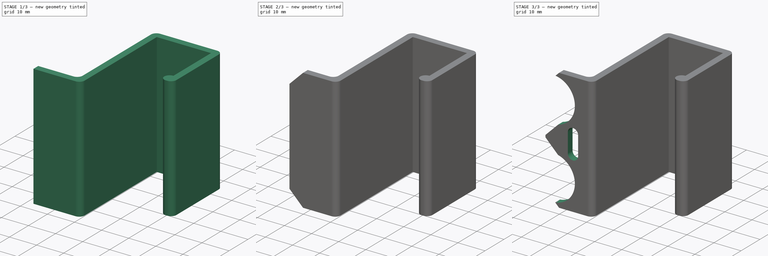
[diagram: build sequence overview — one tinted view per stage of 3, left to right]
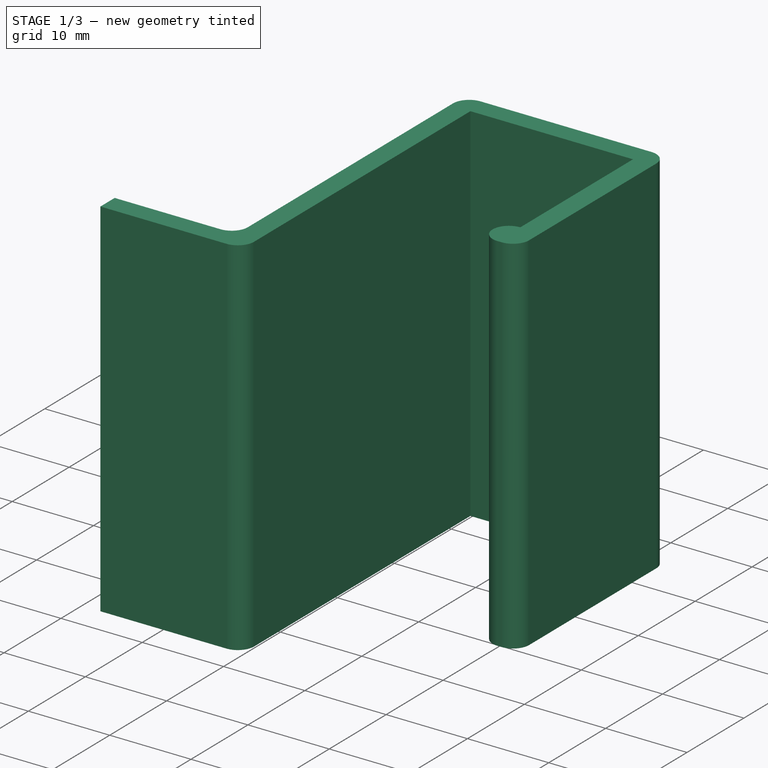
[diagram: stage 1 of 3 — iso view after this stage's code; geometry added in this stage tinted green]
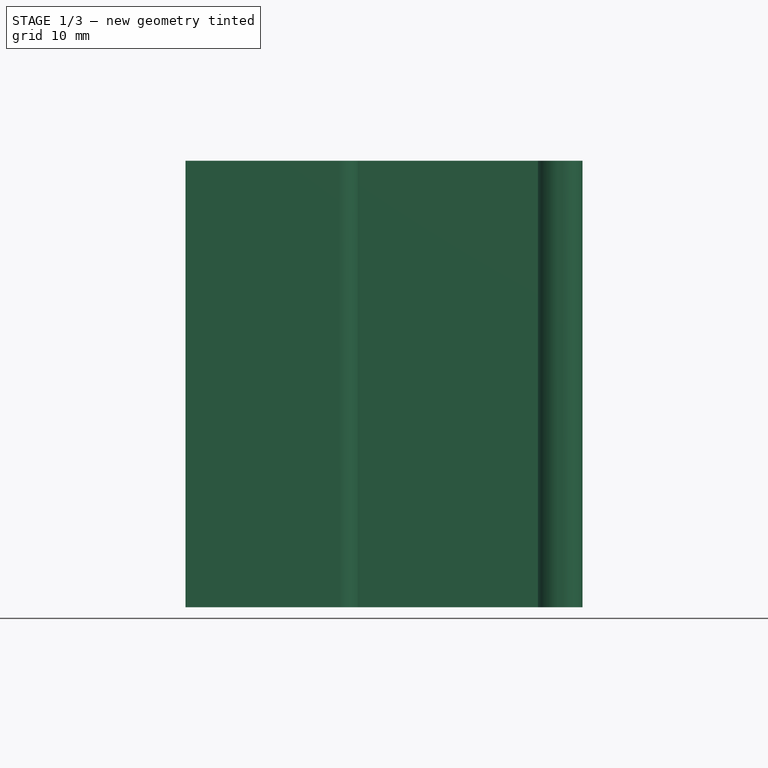
[diagram: stage 1 of 3 — front view after this stage's code; geometry added in this stage tinted green]
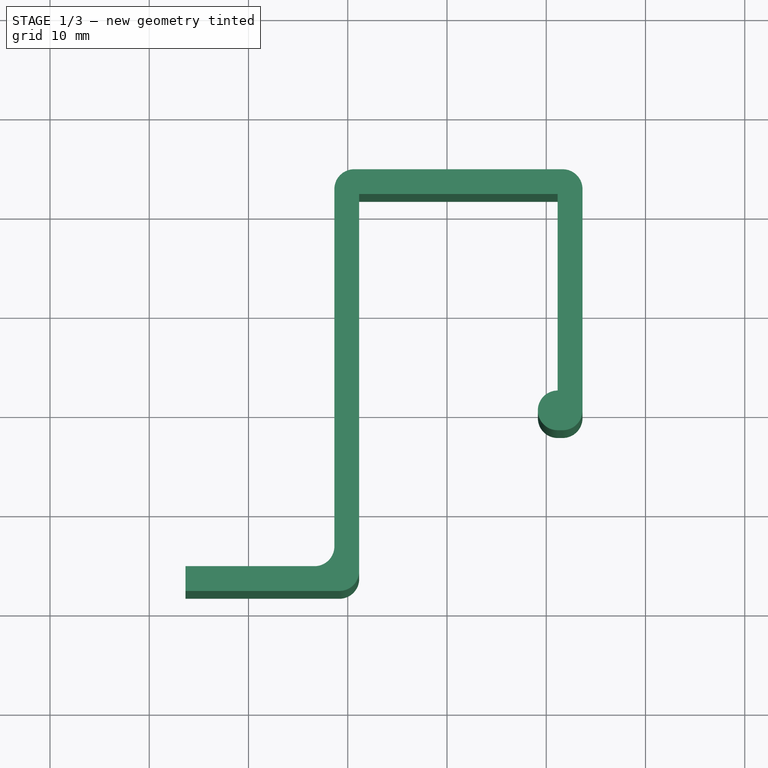
[diagram: stage 1 of 3 — top view after this stage's code; geometry added in this stage tinted green]
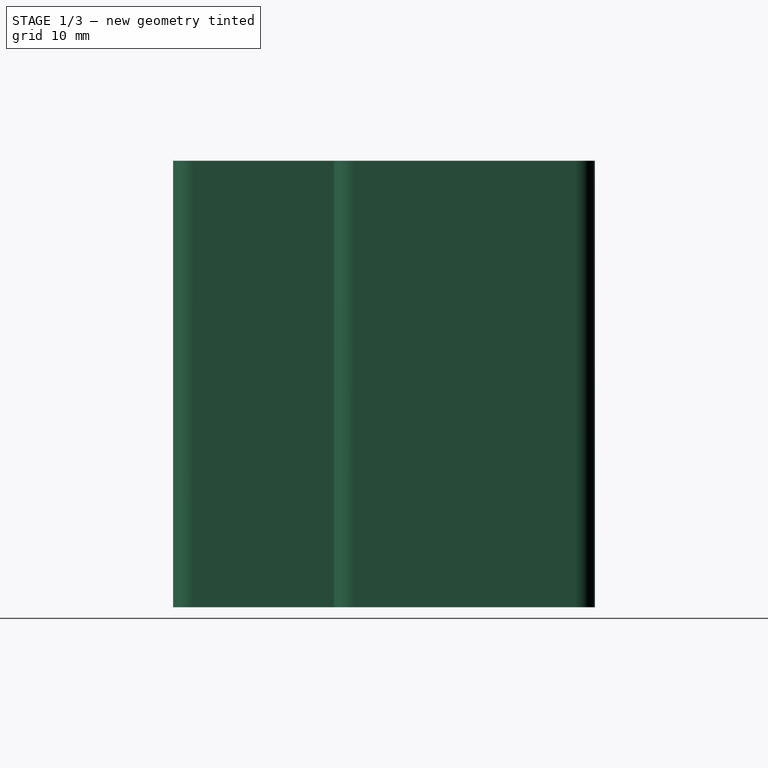
[diagram: stage 1 of 3 — right view after this stage's code; geometry added in this stage tinted green]
FCSTD DOCUMENT  (FreeCAD 0.18R4 (GitTag))
Label: Soporte_distancia
License: All rights reserved
LicenseURL: http://en.wikipedia.org/wiki/All_rights_reserved
objects: Sketcher::SketchObject×3, PartDesign::Pocket×2, PartDesign::Pad×1, PartDesign::Fillet×1, PartDesign::Chamfer×1, PartDesign::Body×1
note: 12 computed .brp shape members not serialized (recipe doc carries the construction recipe); baked Part::Feature solids carry a one-line shape summary decoded from their .brp

FEATURE [Sketcher::SketchObject] Sketch
  MapMode = 5
  Support = -> [XY_Plane]
  sketch-geometry (15):
    g0: LineSegment StartX=11.1549 StartY=7.91936 StartZ=0 EndX=13.6549 EndY=7.91936 EndZ=0
    g1: LineSegment StartX=13.6549 StartY=7.91936 StartZ=0 EndX=13.6549 EndY=34.2194 EndZ=0
    g2: LineSegment StartX=13.6549 StartY=34.2194 StartZ=0 EndX=-11.3451 EndY=34.2194 EndZ=0
    g3: LineSegment StartX=-11.3451 StartY=34.2194 StartZ=0 EndX=-11.3451 EndY=-5.78064 EndZ=0
    g4: LineSegment StartX=-11.3451 StartY=-5.78064 StartZ=0 EndX=-26.3451 EndY=-5.78064 EndZ=0
    g5: LineSegment StartX=-26.3451 StartY=-5.78064 StartZ=0 EndX=-26.3451 EndY=-8.28064 EndZ=0
    g6: LineSegment StartX=-26.3451 StartY=-8.28064 StartZ=0 EndX=-8.84505 EndY=-8.28064 EndZ=0
    g7: LineSegment StartX=-8.84505 StartY=-8.28064 StartZ=0 EndX=-8.84505 EndY=31.7194 EndZ=0
    g8: LineSegment StartX=-8.84505 StartY=31.7194 StartZ=0 EndX=11.1549 EndY=31.7194 EndZ=0
    g9: LineSegment StartX=11.1549 StartY=31.7194 StartZ=0 EndX=11.1549 EndY=11.9194 EndZ=0
    g10: ArcOfCircle CenterX=11.1549 CenterY=9.91936 CenterZ=0 NormalX=0 NormalY=0 NormalZ=1 AngleXU=0 Radius=2 StartAngle=1.5708 EndAngle=4.71239
    g11: LineSegment [constr] StartX=-11.3451 StartY=34.2194 StartZ=0 EndX=-8.84505 EndY=34.2194 EndZ=0
    g12: LineSegment [constr] StartX=-8.84505 StartY=34.2194 StartZ=0 EndX=-8.84505 EndY=31.7194 EndZ=0
    g13: LineSegment [constr] StartX=-8.84505 StartY=31.7194 StartZ=0 EndX=-11.3451 EndY=31.7194 EndZ=0
    g14: LineSegment [constr] StartX=-11.3451 StartY=31.7194 StartZ=0 EndX=-11.3451 EndY=34.2194 EndZ=0
  constraints (41):
    c: Coincident(g0,g1)
    c: Coincident(g1,g2)
    c: Coincident(g2,g3)
    c: Coincident(g3,g4)
    c: Coincident(g4,g5)
    c: Coincident(g5,g6)
    c: Coincident(g6,g7)
    c: Coincident(g7,g8)
    c: Coincident(g8,g9)
    c: Coincident(g9,g10)
    c: Tangent(g0,g10) = -1.5708
    c: Perpendicular(g10,g9)
    c: Vertical(g9)
    c: Vertical(g1)
    c: Vertical(g7)
    c: Vertical(g3)
    c: Vertical(g5)
    c: Horizontal(g6)
    c: Horizontal(g4)
    c: Horizontal(g2)
    c: Horizontal(g8)
    c: Horizontal(g0)
    c: Distance(g5) = 2.5
    c: Distance(g8) = 20
    c: Distance(g7) = 40
    c: Distance(g9) = 19.8
    c: Equal(g0,g5)
    c: Coincident(g11,g12)
    c: Coincident(g12,g13)
    c: Coincident(g13,g14)
    c: Coincident(g14,g11)
    c: Horizontal(g11)
    c: Horizontal(g13)
    c: Vertical(g12)
    c: Vertical(g14)
    c: Coincident(g7,g12)
    c: Coincident(g2,g11)
    c: Equal(g13,g5)
    c: Equal(g5,g12)
    c: Radius(g10) = 2
    c: Distance(g4) = 15
FEATURE [PartDesign::Pad] Pad
  Length = 45
  Length2 = 100
  Profile = -> Sketch
  Type = 0
FEATURE [PartDesign::Fillet] Fillet
  Base = -> Pad [Edge20,Edge11,Edge8,Edge5,Edge2]
  BaseFeature = -> Pad
  Radius = 2
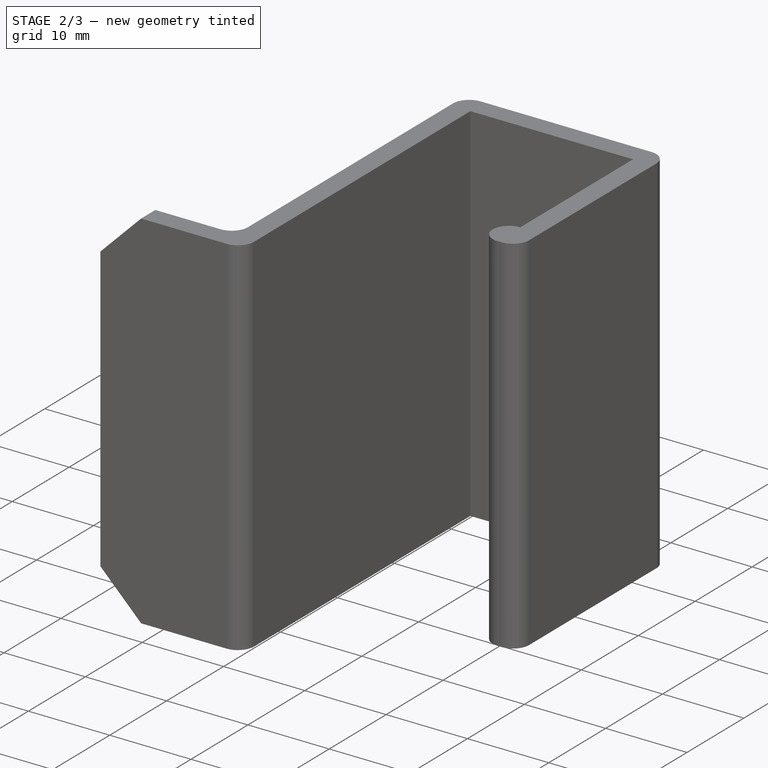
[diagram: stage 2 of 3 — iso view after this stage's code; geometry added in this stage tinted green]
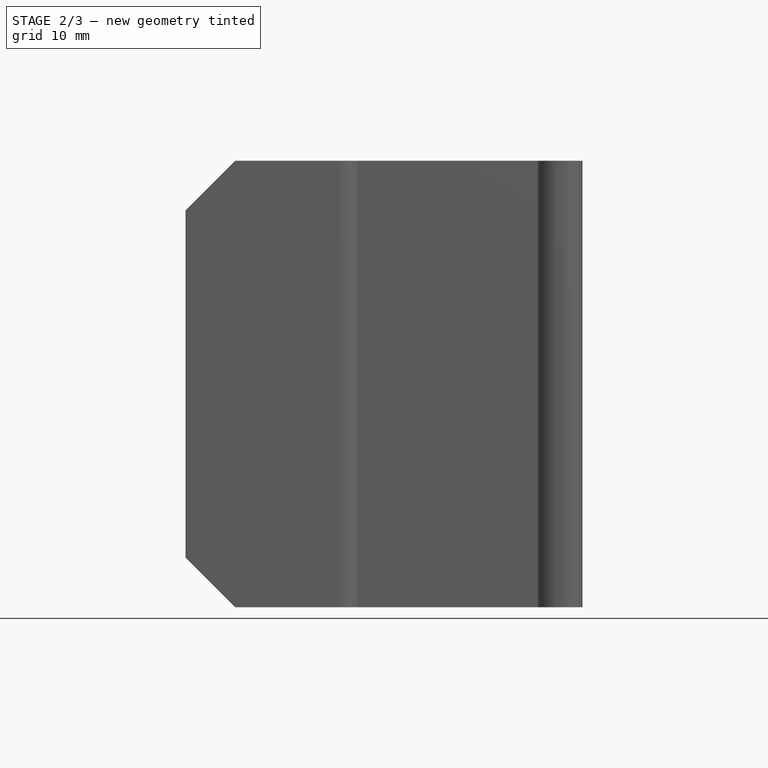
[diagram: stage 2 of 3 — front view after this stage's code; geometry added in this stage tinted green]
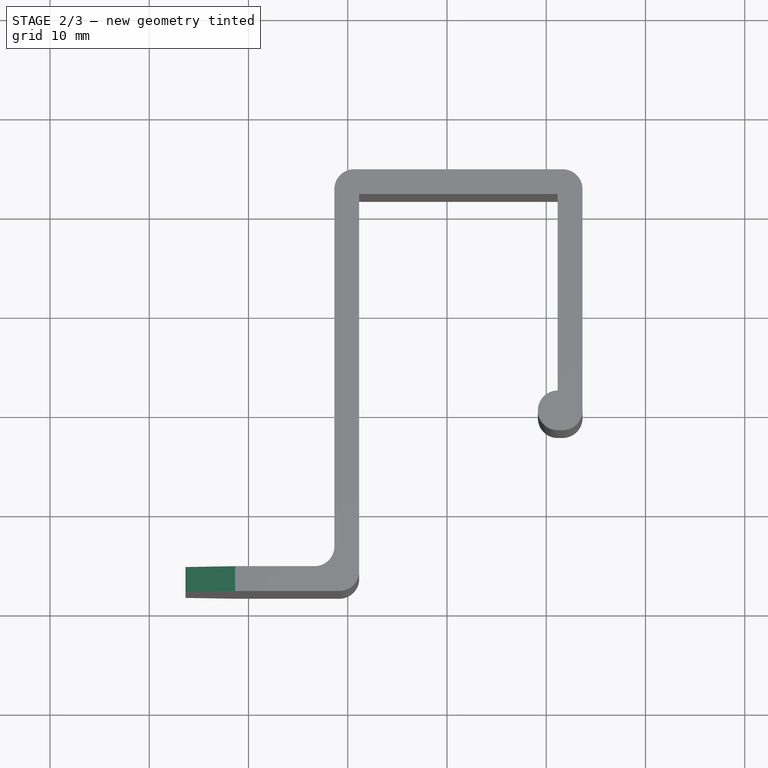
[diagram: stage 2 of 3 — top view after this stage's code; geometry added in this stage tinted green]
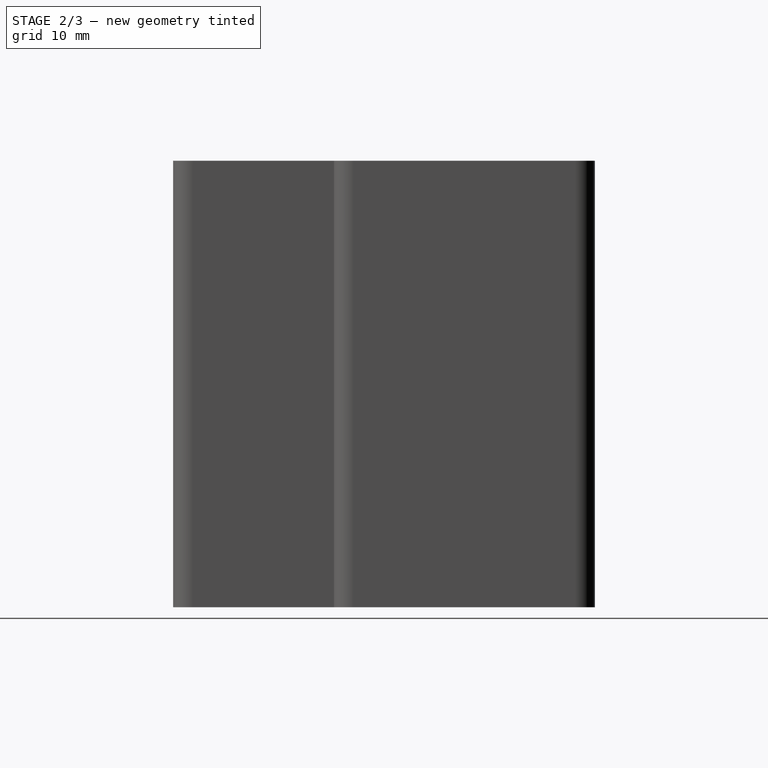
[diagram: stage 2 of 3 — right view after this stage's code; geometry added in this stage tinted green]
FEATURE [PartDesign::Chamfer] Chamfer
  Base = -> Fillet [Edge18,Edge35]
  BaseFeature = -> Fillet
  Size = 5
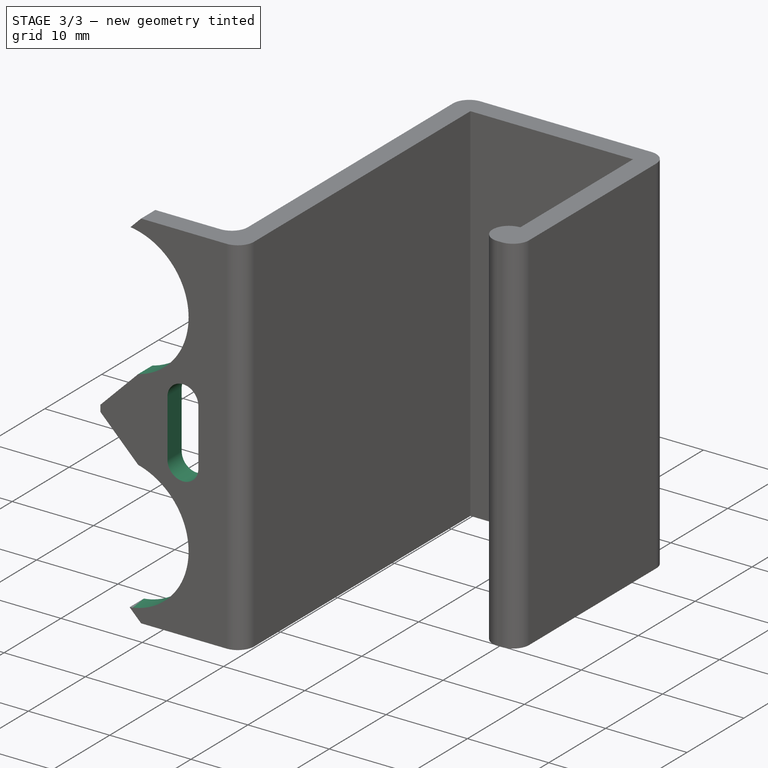
[diagram: stage 3 of 3 — iso view after this stage's code; geometry added in this stage tinted green]
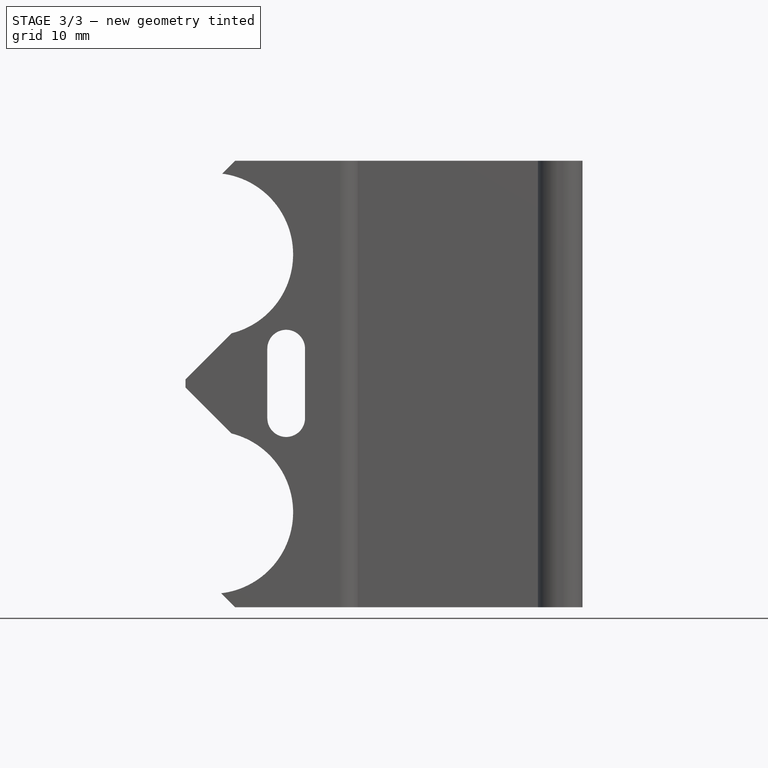
[diagram: stage 3 of 3 — front view after this stage's code; geometry added in this stage tinted green]
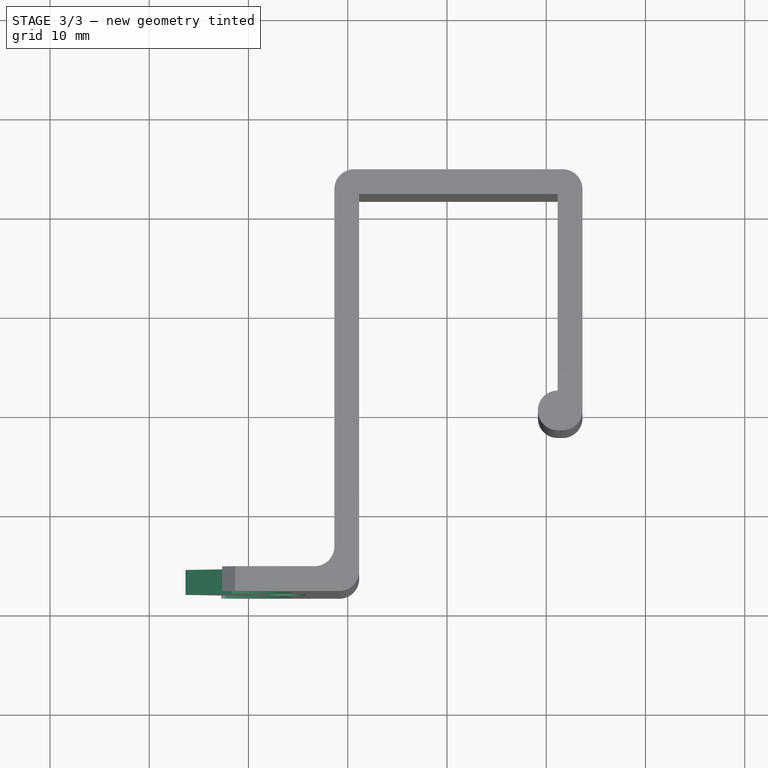
[diagram: stage 3 of 3 — top view after this stage's code; geometry added in this stage tinted green]
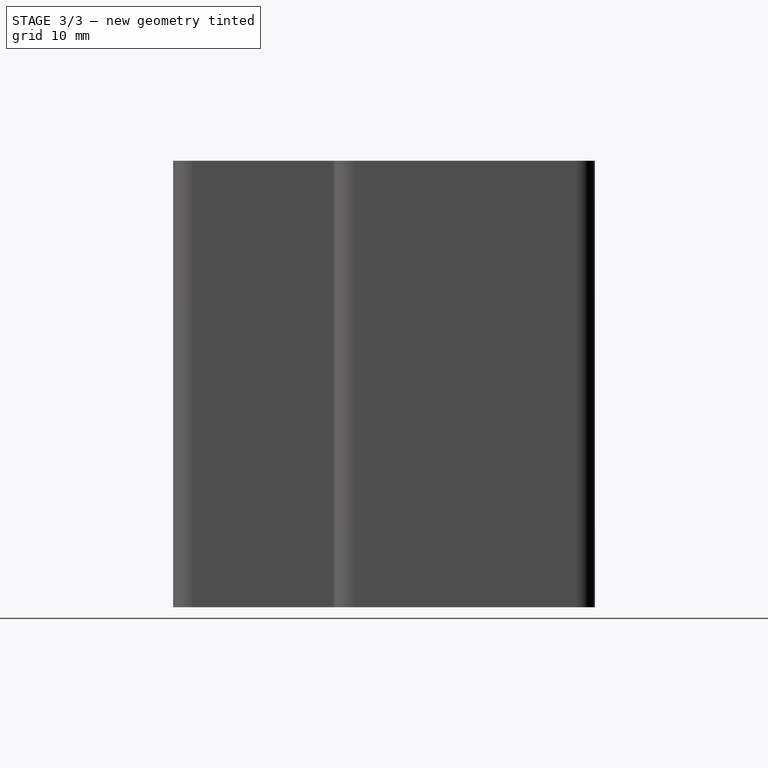
[diagram: stage 3 of 3 — right view after this stage's code; geometry added in this stage tinted green]
FEATURE [Sketcher::SketchObject] Sketch001
  ExternalGeometry = -> [Chamfer]
  MapMode = 5
  Placement = pos=(0,-8.28064,0) rot=(1,0,0;1.5708rad)
  Support = -> [Chamfer]
  sketch-geometry (3):
    g0: Circle CenterX=-20.3451 CenterY=4.25 CenterZ=0 NormalX=0 NormalY=0 NormalZ=1 AngleXU=0 Radius=1.8
    g1: Circle CenterX=-20.3451 CenterY=40.75 CenterZ=0 NormalX=0 NormalY=0 NormalZ=1 AngleXU=0 Radius=1.8
    g2: LineSegment [constr] StartX=-25.4261 StartY=22.5 StartZ=0 EndX=-20.3451 EndY=22.5 EndZ=0
  constraints (7):
    c: Equal(g1,g0)
    c: Distance(g1,g0) = 36.5
    c: Radius(g1) = 1.8
    c: Symmetric(g0,g1,g2)
    c: Symmetric(g-3,g-3,g2)
    c: Vertical(g2,g0)
    c: DistanceX(g-3,g0) = 6
FEATURE [PartDesign::Pocket] Pocket
  BaseFeature = -> Chamfer
  Length = 5
  Length2 = 100
  Profile = -> Sketch001
  Type = 0
FEATURE [Sketcher::SketchObject] Sketch002
  MapMode = 5
  Placement = pos=(0,-8.28064,0) rot=(1,0,0;1.5708rad)
  Support = -> [Pocket]
  sketch-geometry (12):
    g0: ArcOfCircle CenterX=-23.7029 CenterY=9.56228 CenterZ=0 NormalX=0 NormalY=0 NormalZ=1 AngleXU=0 Radius=8.2 StartAngle=4.71239 EndAngle=7.60759
    g1: ArcOfCircle CenterX=-23.7029 CenterY=35.5623 CenterZ=0 NormalX=0 NormalY=0 NormalZ=1 AngleXU=0 Radius=8.2 StartAngle=4.95878 EndAngle=7.85398
    g2: LineSegment StartX=-21.7029 StartY=17.5146 StartZ=0 EndX=-26.7505 EndY=22.5623 EndZ=0
    g3: LineSegment StartX=-26.7505 StartY=22.5623 StartZ=0 EndX=-21.7029 EndY=27.6099 EndZ=0
    g4: LineSegment StartX=-23.7029 StartY=43.7623 StartZ=0 EndX=-32.4194 EndY=43.7623 EndZ=0
    g5: LineSegment StartX=-32.4194 StartY=43.7623 StartZ=0 EndX=-32.4194 EndY=1.36228 EndZ=0
    g6: LineSegment StartX=-32.4194 StartY=1.36228 StartZ=0 EndX=-23.7029 EndY=1.36228 EndZ=0
    g7: ArcOfCircle CenterX=-16.2029 CenterY=26.0623 CenterZ=0 NormalX=0 NormalY=0 NormalZ=1 AngleXU=0 Radius=1.9 StartAngle=9e-16 EndAngle=3.14159
    g8: ArcOfCircle CenterX=-16.2029 CenterY=19.0623 CenterZ=0 NormalX=0 NormalY=0 NormalZ=1 AngleXU=0 Radius=1.9 StartAngle=3.14159 EndAngle=6.28319
    g9: LineSegment StartX=-18.1029 StartY=26.0623 StartZ=0 EndX=-18.1029 EndY=19.0623 EndZ=0
    g10: LineSegment StartX=-14.3029 StartY=26.0623 StartZ=0 EndX=-14.3029 EndY=19.0623 EndZ=0
    g11: LineSegment [constr] StartX=-26.7505 StartY=22.5623 StartZ=0 EndX=-18.1029 EndY=22.5623 EndZ=0
  constraints (30):
    c: Radius(g1) = 8.2
    c: Distance(g1,g0) = 26
    c: Vertical(g0,g1)
    c: Coincident(g2,g3)
    c: Coincident(g4,g5)
    c: Coincident(g5,g6)
    c: Coincident(g0,g2)
    c: Coincident(g1,g3)
    c: Vertical(g5)
    c: Horizontal(g6)
    c: Horizontal(g4)
    c: Angle(g-1,g2) = 2.35619
    c: Perpendicular(g3,g2)
    c: Equal(g1,g0)
    c: Tangent(g1,g4) = -1.5708
    c: Tangent(g0,g6) = -1.5708
    c: Vertical(g1,g0)
    c: Tangent(g7,g10) = 1.5708
    c: Tangent(g7,g9) = -1.5708
    c: Tangent(g9,g8) = -1.5708
    c: Tangent(g10,g8) = 1.5708
    c: Vertical(g9)
    c: Equal(g7,g8)
    c: DistanceX(g0,g8) = 9.4
    c: Distance(g8,g8) = 3.8
    c: Distance(g10) = 7
    c: Coincident(g2,g11)
    c: Symmetric(g8,g7,g11)
    c: PointOnObject(g11,g9)
    c: DistanceX(g0,g0) = 2
FEATURE [PartDesign::Pocket] Pocket001
  BaseFeature = -> Pocket
  Length = 5
  Length2 = 100
  Profile = -> Sketch002
  Type = 0
FEATURE [PartDesign::Body] Body
  Group = -> [Sketch,Pad,Fillet,Chamfer,Sketch001,Pocket,Sketch002,Pocket001]
  Origin = -> Origin
  Tip = -> Pocket001
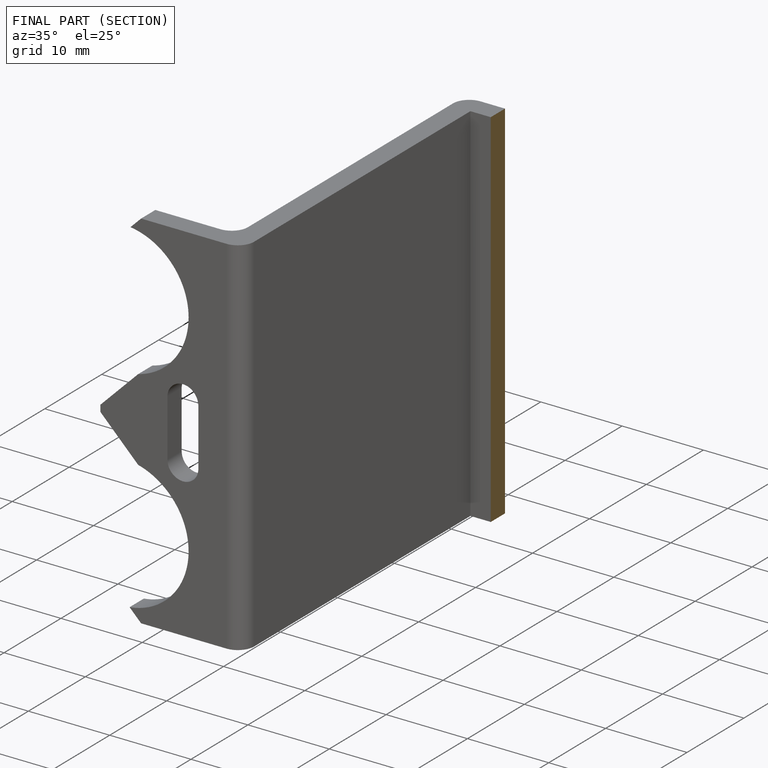
[diagram: finished part — half-section view (interior)]
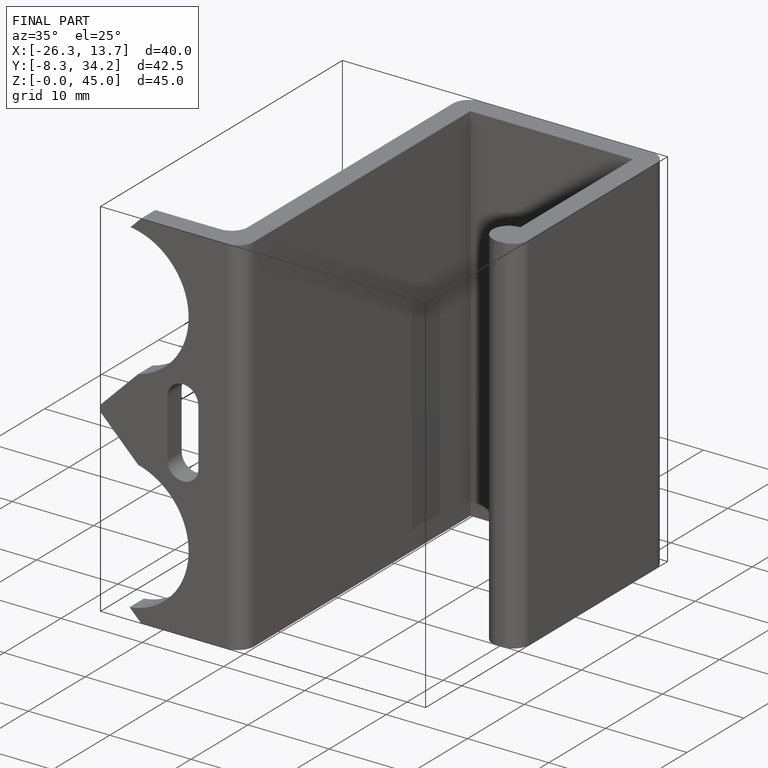
[diagram: finished part — iso view with bounding-box wireframe]
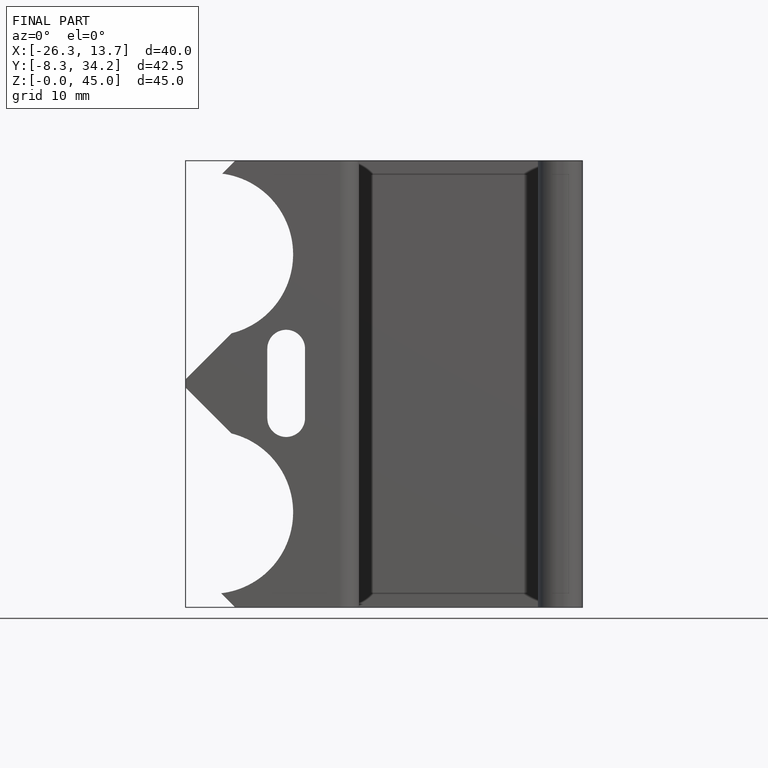
[diagram: finished part — front view with bounding-box wireframe]
